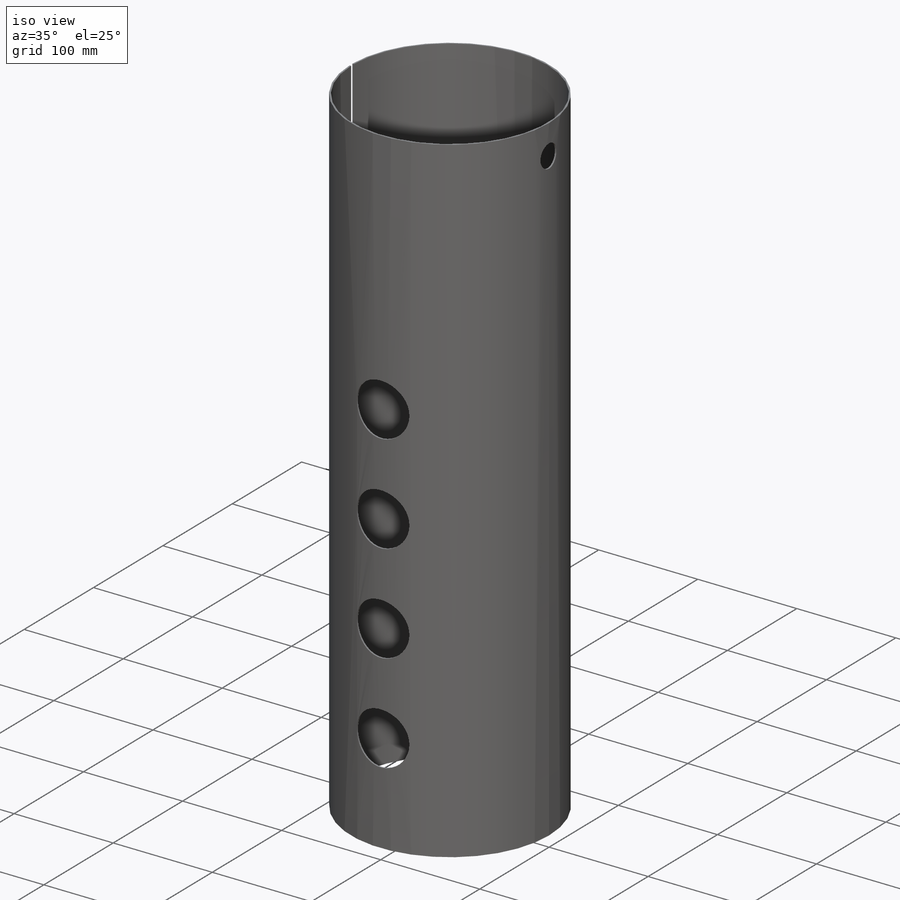
[diagram: iso view]
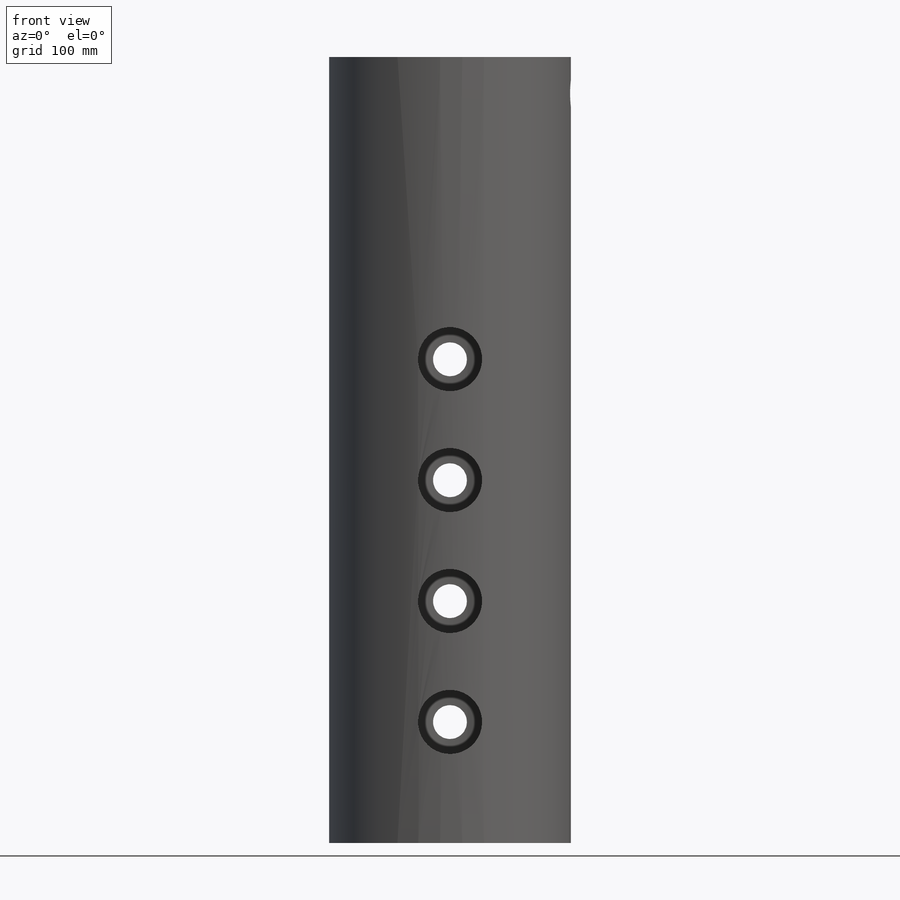
[diagram: front view]
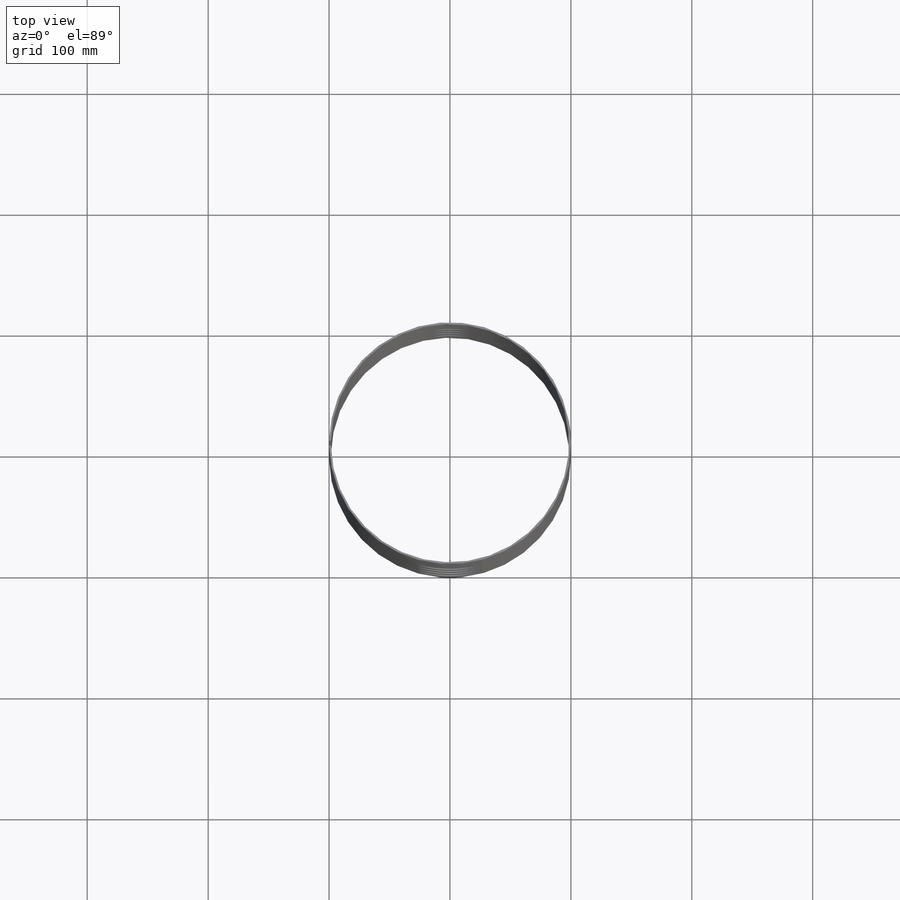
[diagram: top view]
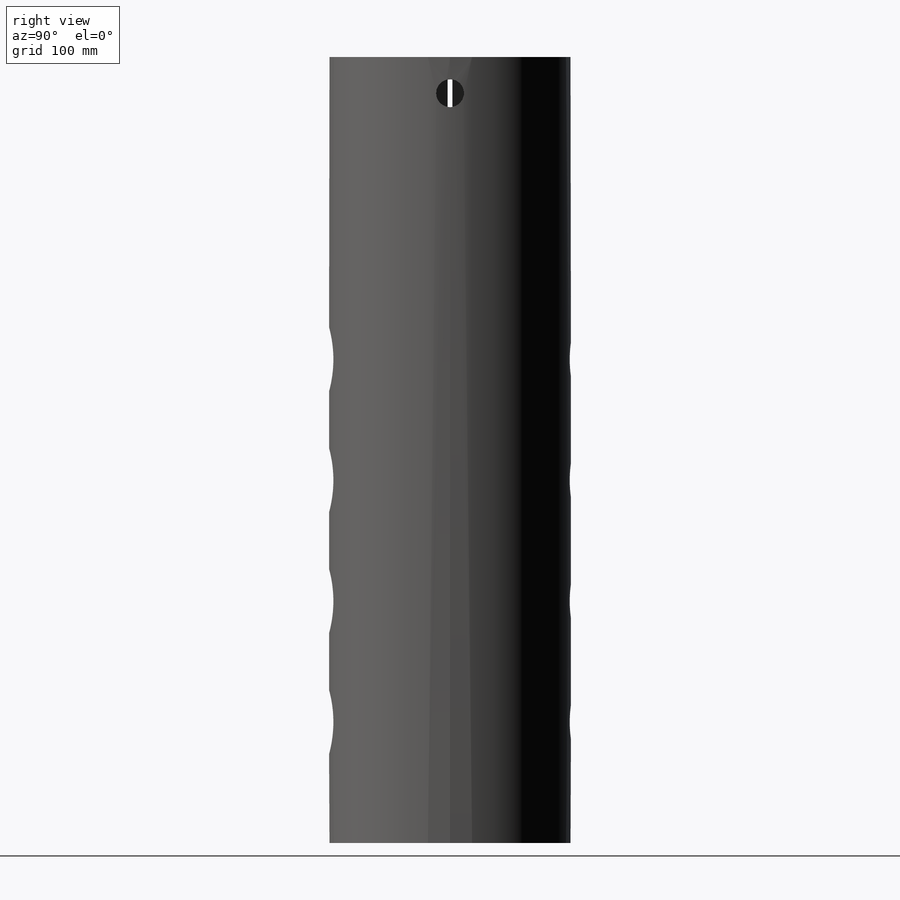
[diagram: right view]
SOLIDWORKS PART (.sldprt)
format: sldprt  version: not decoded by parser v0  size: 227,328 bytes
history: native  units: mm
features: sketch x5, plane x4, cut_extrude x4, material x1 (+8 scaffold rows collapsed)
feature tree (22):
  scaffold x8  (default folders/planes/origin — collapsed)
  material  "Kupfer"
  plane  "Ebene vorne"
  plane  "Ebene oben"
  plane  "Ebene rechts"
  sketch  "Skizze1"  dims[c1.D4=5.0mm c1.D1=750.0mm c1.D2=200.0mm c1.D3=650.0mm c1.D5=20.0mm c2.D1=360.0deg c2.D3=1.5mm c2.D4=10.0mm c2.D7=0.0mm]
  sketch  "Skizze2"  dims[D1=53.0mm D2=100.0mm D3=100.0mm D4=100.0mm D5=100.0mm]
  cut_extrude  "Schnitt-Linear austragen1"  [1 undecoded]
  sketch  "Skizze3"  dims[D1=23.0mm D2=30.0mm]
  cut_extrude  "Schnitt-Linear austragen2"  [1 undecoded]
  plane  "Ebene1"
  sketch  "Skizze4"  dims[D1=28.0mm]
  cut_extrude  "Schnitt-Linear austragen3"  [1 undecoded]
  sketch  "Skizze5"  dims[D1=2.0mm D2=2.0mm]
  cut_extrude  "Schnitt-Linear austragen4"  [1 undecoded]
decode coverage: 5 of 9 modeling features carry decoded parameters
note: 4 parameter values undecoded
summary: no parameter record found for 4 features
note: suppression state not decoded; provenance and decode notes live in map.json
